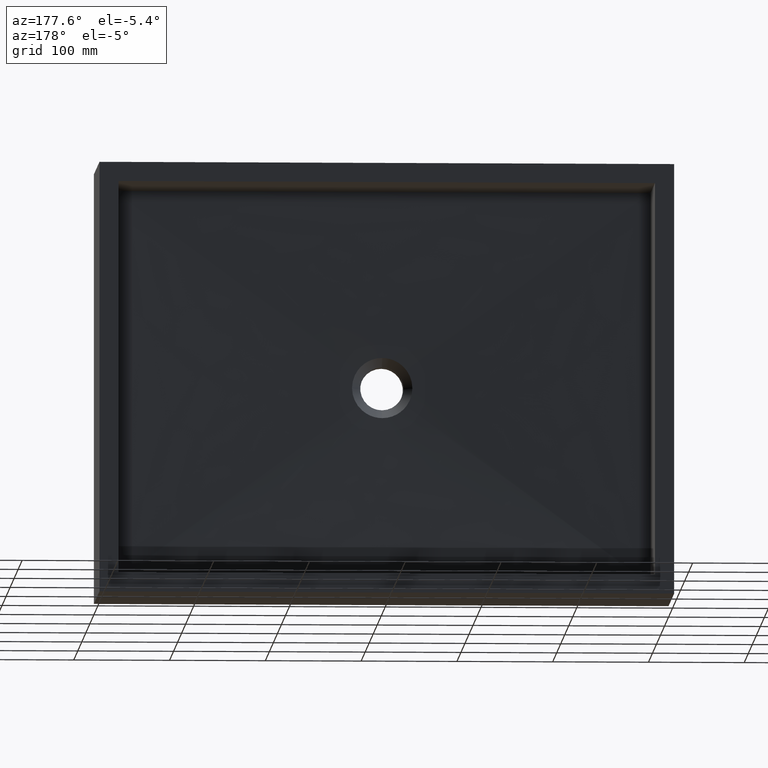
[diagram: clean part render]
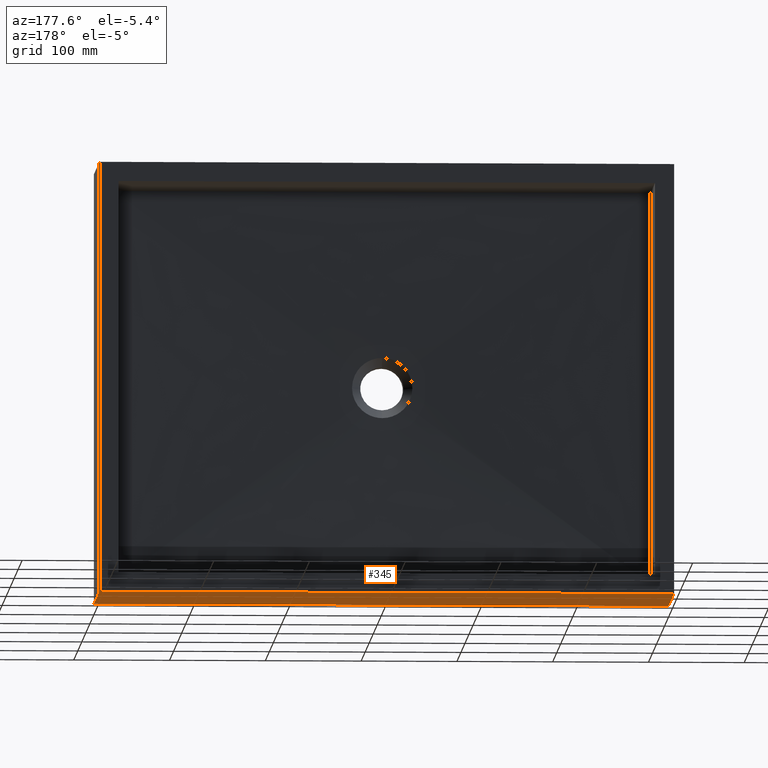
[diagram: same view with one face highlighted and labeled with its STEP entity id]
A machine part, auxiliary view. The second image highlights one B-rep face of the part: STEP entity #345.
In plain terms, the highlighted planar face has unit normal (0, 0, 1).
Its self-contained STEP definition (entity closure, byte-faithful):
#51 = VERTEX_POINT ( 'NONE', #681 ) ;
#85 = VERTEX_POINT ( 'NONE', #992 ) ;
#94 = VECTOR ( 'NONE', #861, 1000.000000000000000 ) ;
#174 = EDGE_CURVE ( 'NONE', #380, #51, #723, .T. ) ;
#176 = LINE ( 'NONE', #809, #1020 ) ;
#180 = DIRECTION ( 'NONE',  ( 0.0000000000000000000, 0.0000000000000000000, 1.000000000000000000 ) ) ;
#181 = ORIENTED_EDGE ( 'NONE', *, *, #174, .F. ) ;
#197 = CARTESIAN_POINT ( 'NONE',  ( 600.0000000000000000, 140.0000000000000000, -450.0000000000000000 ) ) ;
#230 = ORIENTED_EDGE ( 'NONE', *, *, #433, .F. ) ;
#345 = ADVANCED_FACE ( 'NONE', ( #670 ), #873, .F. ) ;
#348 = CARTESIAN_POINT ( 'NONE',  ( 0.0000000000000000000, 0.0000000000000000000, -450.0000000000000000 ) ) ;
#366 = AXIS2_PLACEMENT_3D ( 'NONE', #613, #180, #789 ) ;
#374 = EDGE_CURVE ( 'NONE', #85, #51, #847, .T. ) ;
#376 = VECTOR ( 'NONE', #716, 1000.000000000000000 ) ;
#380 = VERTEX_POINT ( 'NONE', #888 ) ;
#433 = EDGE_CURVE ( 'NONE', #921, #380, #176, .T. ) ;
#489 = EDGE_CURVE ( 'NONE', #921, #85, #523, .T. ) ;
#514 = ORIENTED_EDGE ( 'NONE', *, *, #489, .T. ) ;
#523 = LINE ( 'NONE', #682, #94 ) ;
#613 = CARTESIAN_POINT ( 'NONE',  ( 0.0000000000000000000, 140.0000000000000000, -450.0000000000000000 ) ) ;
#670 = FACE_OUTER_BOUND ( 'NONE', #1036, .T. ) ;
#681 = CARTESIAN_POINT ( 'NONE',  ( 0.0000000000000000000, 0.0000000000000000000, -450.0000000000000000 ) ) ;
#682 = CARTESIAN_POINT ( 'NONE',  ( 600.0000000000000000, 140.0000000000000000, -450.0000000000000000 ) ) ;
#716 = DIRECTION ( 'NONE',  ( -1.000000000000000000, -0.0000000000000000000, -0.0000000000000000000 ) ) ;
#719 = DIRECTION ( 'NONE',  ( -1.000000000000000000, -0.0000000000000000000, -0.0000000000000000000 ) ) ;
#723 = LINE ( 'NONE', #839, #957 ) ;
#736 = DIRECTION ( 'NONE',  ( -0.0000000000000000000, -1.000000000000000000, -0.0000000000000000000 ) ) ;
#789 = DIRECTION ( 'NONE',  ( 1.000000000000000000, 0.0000000000000000000, -0.0000000000000000000 ) ) ;
#809 = CARTESIAN_POINT ( 'NONE',  ( 0.0000000000000000000, 140.0000000000000000, -450.0000000000000000 ) ) ;
#839 = CARTESIAN_POINT ( 'NONE',  ( 0.0000000000000000000, 140.0000000000000000, -450.0000000000000000 ) ) ;
#847 = LINE ( 'NONE', #348, #376 ) ;
#861 = DIRECTION ( 'NONE',  ( -0.0000000000000000000, -1.000000000000000000, -0.0000000000000000000 ) ) ;
#873 = PLANE ( 'NONE',  #366 ) ;
#888 = CARTESIAN_POINT ( 'NONE',  ( 0.0000000000000000000, 140.0000000000000000, -450.0000000000000000 ) ) ;
#921 = VERTEX_POINT ( 'NONE', #197 ) ;
#957 = VECTOR ( 'NONE', #736, 1000.000000000000000 ) ;
#992 = CARTESIAN_POINT ( 'NONE',  ( 600.0000000000000000, 0.0000000000000000000, -450.0000000000000000 ) ) ;
#1020 = VECTOR ( 'NONE', #719, 1000.000000000000000 ) ;
#1023 = ORIENTED_EDGE ( 'NONE', *, *, #374, .T. ) ;
#1036 = EDGE_LOOP ( 'NONE', ( #1023, #181, #230, #514 ) ) ;